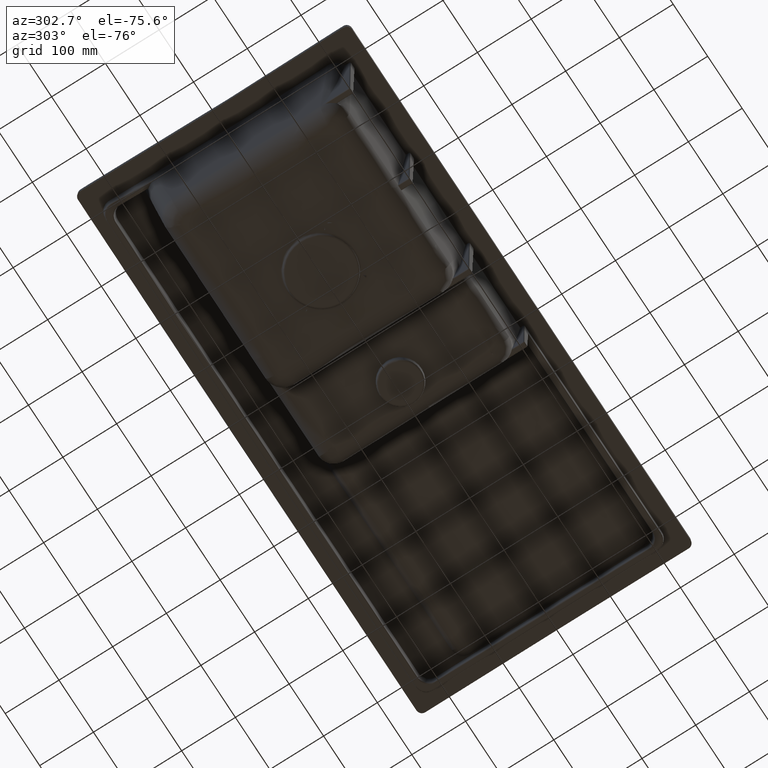
[diagram: clean part render]
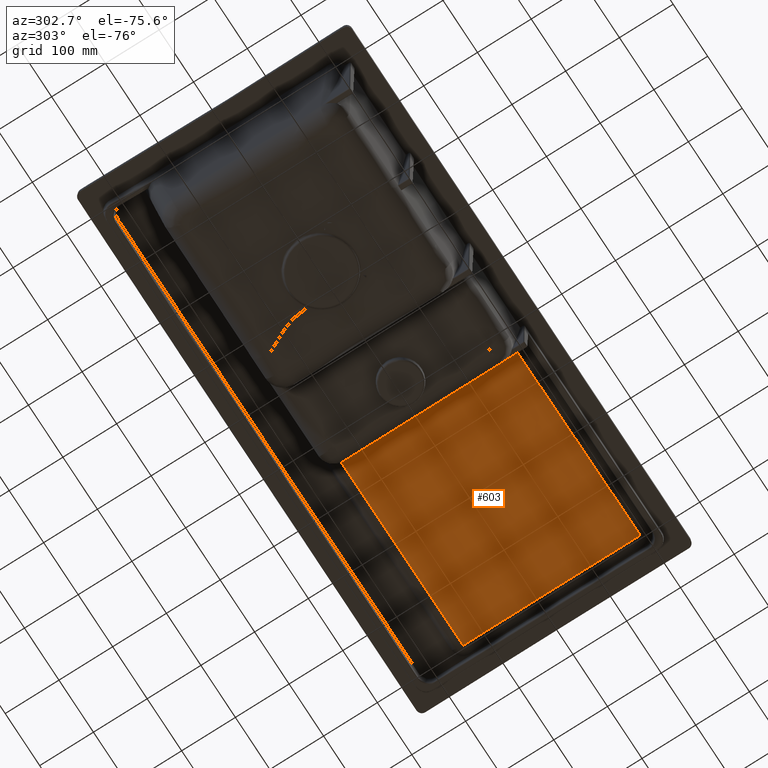
[diagram: same view with one face highlighted and labeled with its STEP entity id]
A machine part, auxiliary view. The second image highlights one B-rep face of the part: STEP entity #603.
In plain terms, the highlighted face is a freeform B-spline surface patch.
Its self-contained STEP definition (entity closure, byte-faithful):
#114=(
BOUNDED_CURVE()
B_SPLINE_CURVE(3,(#15065,#15066,#15067,#15068,#15069,#15070),
 .UNSPECIFIED.,.F.,.F.)
B_SPLINE_CURVE_WITH_KNOTS((4,2,4),(0.,0.48948603548975,1.),
 .UNSPECIFIED.)
CURVE()
GEOMETRIC_REPRESENTATION_ITEM()
RATIONAL_B_SPLINE_CURVE((1.,1.,1.,1.,1.,1.))
REPRESENTATION_ITEM('')
);
#116=(
BOUNDED_CURVE()
B_SPLINE_CURVE(3,(#15093,#15094,#15095,#15096,#15097,#15098,#15099,#15100,
#15101,#15102,#15103,#15104),.UNSPECIFIED.,.F.,.F.)
B_SPLINE_CURVE_WITH_KNOTS((4,2,2,2,2,4),(0.,0.25,0.5,0.625,0.75,1.),
 .UNSPECIFIED.)
CURVE()
GEOMETRIC_REPRESENTATION_ITEM()
RATIONAL_B_SPLINE_CURVE((1.,1.,1.,1.,1.,1.,1.,1.,1.,1.,1.,1.))
REPRESENTATION_ITEM('')
);
#118=(
BOUNDED_CURVE()
B_SPLINE_CURVE(3,(#15145,#15146,#15147,#15148,#15149,#15150,#15151,#15152,
#15153,#15154,#15155,#15156,#15157,#15158),.UNSPECIFIED.,.F.,.F.)
B_SPLINE_CURVE_WITH_KNOTS((4,2,2,2,2,2,4),(0.,0.125000255718451,0.250000511436902,
0.500001022873803,0.750001534310705,0.875001790029155,1.),.UNSPECIFIED.)
CURVE()
GEOMETRIC_REPRESENTATION_ITEM()
RATIONAL_B_SPLINE_CURVE((1.,1.,1.,1.,1.,1.,1.,1.,1.,1.,1.,1.,1.,1.))
REPRESENTATION_ITEM('')
);
#120=(
BOUNDED_CURVE()
B_SPLINE_CURVE(3,(#15205,#15206,#15207,#15208,#15209,#15210,#15211,#15212,
#15213,#15214,#15215,#15216,#15217,#15218),.UNSPECIFIED.,.F.,.F.)
B_SPLINE_CURVE_WITH_KNOTS((4,2,2,2,2,2,4),(0.,0.25,0.375,0.5,0.625,0.75,
1.),.UNSPECIFIED.)
CURVE()
GEOMETRIC_REPRESENTATION_ITEM()
RATIONAL_B_SPLINE_CURVE((1.,1.,1.,1.,1.,1.,1.,1.,1.,1.,1.,1.,1.,1.))
REPRESENTATION_ITEM('')
);
#603=ADVANCED_FACE('',(#1103),#852,.F.);
#852=B_SPLINE_SURFACE_WITH_KNOTS('',3,3,((#19778,#19779,#19780,#19781),
(#19782,#19783,#19784,#19785),(#19786,#19787,#19788,#19789),(#19790,#19791,
#19792,#19793),(#19794,#19795,#19796,#19797),(#19798,#19799,#19800,#19801),
(#19802,#19803,#19804,#19805),(#19806,#19807,#19808,#19809),(#19810,#19811,
#19812,#19813),(#19814,#19815,#19816,#19817),(#19818,#19819,#19820,#19821),
(#19822,#19823,#19824,#19825),(#19826,#19827,#19828,#19829),(#19830,#19831,
#19832,#19833),(#19834,#19835,#19836,#19837),(#19838,#19839,#19840,#19841),
(#19842,#19843,#19844,#19845),(#19846,#19847,#19848,#19849),(#19850,#19851,
#19852,#19853)),.UNSPECIFIED.,.F.,.F.,.F.,(4,3,3,3,3,3,4),(4,4),(0.,0.125,
0.25,0.5,0.75,0.875,1.),(0.,1.),.UNSPECIFIED.);
#1103=FACE_OUTER_BOUND('',#1446,.T.);
#1446=EDGE_LOOP('',(#2390,#2391,#2392,#2393,#2394,#2395,#2396,#2397));
#2390=ORIENTED_EDGE('',*,*,#4251,.F.);
#2391=ORIENTED_EDGE('',*,*,#4252,.T.);
#2392=ORIENTED_EDGE('',*,*,#4253,.T.);
#2393=ORIENTED_EDGE('',*,*,#4172,.F.);
#2394=ORIENTED_EDGE('',*,*,#4170,.F.);
#2395=ORIENTED_EDGE('',*,*,#4168,.F.);
#2396=ORIENTED_EDGE('',*,*,#4166,.F.);
#2397=ORIENTED_EDGE('',*,*,#4164,.F.);
#3537=VERTEX_POINT('',#14993);
#3538=VERTEX_POINT('',#14998);
#3539=VERTEX_POINT('',#15071);
#3540=VERTEX_POINT('',#15105);
#3541=VERTEX_POINT('',#15159);
#3542=VERTEX_POINT('',#15219);
#3585=VERTEX_POINT('',#19726);
#3586=VERTEX_POINT('',#19751);
#4164=EDGE_CURVE('',#3537,#3538,#4950,.T.);
#4166=EDGE_CURVE('',#3538,#3539,#114,.T.);
#4168=EDGE_CURVE('',#3539,#3540,#116,.T.);
#4170=EDGE_CURVE('',#3540,#3541,#118,.T.);
#4172=EDGE_CURVE('',#3541,#3542,#120,.T.);
#4251=EDGE_CURVE('',#3585,#3537,#5021,.T.);
#4252=EDGE_CURVE('',#3585,#3586,#5022,.T.);
#4253=EDGE_CURVE('',#3586,#3542,#5023,.T.);
#4950=B_SPLINE_CURVE_WITH_KNOTS('',3,(#14994,#14995,#14996,#14997),
 .UNSPECIFIED.,.F.,.F.,(4,4),(0.,1.),.UNSPECIFIED.);
#5021=B_SPLINE_CURVE_WITH_KNOTS('',3,(#19727,#19728,#19729,#19730),
 .UNSPECIFIED.,.F.,.F.,(4,4),(0.,1.),.UNSPECIFIED.);
#5022=B_SPLINE_CURVE_WITH_KNOTS('',3,(#19747,#19748,#19749,#19750),
 .UNSPECIFIED.,.F.,.F.,(4,4),(0.,1.),.UNSPECIFIED.);
#5023=B_SPLINE_CURVE_WITH_KNOTS('',3,(#19752,#19753,#19754,#19755,#19756,
#19757,#19758,#19759,#19760,#19761,#19762,#19763,#19764,#19765,#19766,#19767,
#19768,#19769,#19770,#19771,#19772,#19773,#19774,#19775,#19776,#19777),
 .UNSPECIFIED.,.F.,.F.,(4,2,2,1,1,1,1,1,2,2,2,1,1,1,2,2,4),(0.,0.25,0.251953125,
0.25390625,0.2578125,0.265624999999999,0.281249999999999,0.312499999999997,
0.374999999999994,0.499999999999988,0.507812499999988,0.515624999999988,
0.531249999999989,0.56249999999999,0.624999999999991,0.749999999999994,
1.),.UNSPECIFIED.);
#14993=CARTESIAN_POINT('',(77.4181869031489,-159.927634752266,-35.5152649349231));
#14994=CARTESIAN_POINT('',(77.4181830240055,-159.92752359103,-35.5152607852196));
#14995=CARTESIAN_POINT('',(77.4176013359946,-160.760235501934,-35.5207916569921));
#14996=CARTESIAN_POINT('',(77.3746894122288,-161.610495437765,-35.5227679617521));
#14997=CARTESIAN_POINT('',(77.2865248328866,-162.470909857633,-35.5197612868745));
#14998=CARTESIAN_POINT('',(77.284855173927,-162.494217912453,-35.5194926409784));
#15065=CARTESIAN_POINT('',(77.2818060018505,-162.516941126431,-35.5192667060835));
#15066=CARTESIAN_POINT('',(136.359018715773,-162.643701210959,-34.2044924119023));
#15067=CARTESIAN_POINT('',(195.436225649233,-162.813839948811,-32.8971069625064));
#15068=CARTESIAN_POINT('',(316.128640548483,-163.261836925423,-30.2420221926544));
#15069=CARTESIAN_POINT('',(377.743710369669,-163.575522477584,-28.8954056177436));
#15070=CARTESIAN_POINT('',(439.359425495732,-163.869189243476,-27.555088439001));
#15071=CARTESIAN_POINT('',(439.359425358588,-163.869189295494,-27.5550821467366));
#15093=CARTESIAN_POINT('',(439.359425495685,-163.869189243476,-27.555088439002));
#15094=CARTESIAN_POINT('',(439.424158722718,-163.869497756411,-27.5536803069653));
#15095=CARTESIAN_POINT('',(439.490267532907,-163.856751647523,-27.5521345524055));
#15096=CARTESIAN_POINT('',(439.610762517118,-163.807270806179,-27.5490991839756));
#15097=CARTESIAN_POINT('',(439.666721593343,-163.770023851426,-27.5475709777476));
#15098=CARTESIAN_POINT('',(439.736140095696,-163.700490188876,-27.5454787887274));
#15099=CARTESIAN_POINT('',(439.757329949175,-163.674578980707,-27.5448006798547));
#15100=CARTESIAN_POINT('',(439.79372667509,-163.619769350684,-27.5435486796185));
#15101=CARTESIAN_POINT('',(439.809115438926,-163.59078908109,-27.5429701544834));
#15102=CARTESIAN_POINT('',(439.846806747947,-163.499096463453,-27.5413772102329));
#15103=CARTESIAN_POINT('',(439.859776374037,-163.432914459161,-27.5405347422918));
#15104=CARTESIAN_POINT('',(439.859789391354,-163.36683635201,-27.5399722169177));
#15105=CARTESIAN_POINT('',(439.85978918223,-163.366836500799,-27.5399626242957));
#15145=CARTESIAN_POINT('',(439.859789391302,-163.366836620026,-27.5399722191994));
#15146=CARTESIAN_POINT('',(439.862517146477,-149.476917215563,-27.4217270088147));
#15147=CARTESIAN_POINT('',(439.882185297498,-135.68465164721,-27.1606971952594));
#15148=CARTESIAN_POINT('',(439.917102712483,-108.308282351637,-26.699188216079));
#15149=CARTESIAN_POINT('',(439.930411793919,-94.6521745117692,-26.5085068090599));
#15150=CARTESIAN_POINT('',(439.960675825695,-53.6361351743514,-26.0749330314705));
#15151=CARTESIAN_POINT('',(439.966665005204,-26.2678399524564,-25.9537378477597));
#15152=CARTESIAN_POINT('',(439.959414803934,28.4765333821908,-25.9628599417659));
#15153=CARTESIAN_POINT('',(439.946896259783,55.8455750865231,-26.0958873328956));
#15154=CARTESIAN_POINT('',(439.907265154489,96.8810834684168,-26.5185187456178));
#15155=CARTESIAN_POINT('',(439.890130342256,110.552791451668,-26.6986587998791));
#15156=CARTESIAN_POINT('',(439.851544082628,137.912605226825,-27.1371816334591));
#15157=CARTESIAN_POINT('',(439.827042381935,151.580387587358,-27.4165053268274));
#15158=CARTESIAN_POINT('',(439.821043845529,165.409069601034,-27.63245829284));
#15159=CARTESIAN_POINT('',(439.821044636479,165.40941133806,-27.6325102889823));
#15205=CARTESIAN_POINT('',(439.821043551024,165.409748570722,-27.6324688957872));
#15206=CARTESIAN_POINT('',(439.821014869425,165.475822256469,-27.6335007130217));
#15207=CARTESIAN_POINT('',(439.807849326444,165.54165205427,-27.6347912163774));
#15208=CARTESIAN_POINT('',(439.770508834095,165.632050152303,-27.6369486506101));
#15209=CARTESIAN_POINT('',(439.75491517869,165.661323795266,-27.6377173544103));
#15210=CARTESIAN_POINT('',(439.718512422393,165.715842926781,-27.6392964810307));
#15211=CARTESIAN_POINT('',(439.697868880062,165.740990252102,-27.6401020587501));
#15212=CARTESIAN_POINT('',(439.651757113753,165.787111696001,-27.6417451105385));
#15213=CARTESIAN_POINT('',(439.626057594595,165.808165582301,-27.6425884696896));
#15214=CARTESIAN_POINT('',(439.571929572398,165.844224821352,-27.6442361240306));
#15215=CARTESIAN_POINT('',(439.543295322041,165.859495775284,-27.6450486792889));
#15216=CARTESIAN_POINT('',(439.452611610723,165.896908996139,-27.6474523932764));
#15217=CARTESIAN_POINT('',(439.387856003045,165.909650679437,-27.6489524129773));
#15218=CARTESIAN_POINT('',(439.322572401132,165.909639422621,-27.6502660602728));
#15219=CARTESIAN_POINT('',(439.322572860305,165.909638784267,-27.6503075819558));
#19726=CARTESIAN_POINT('',(77.4196172667364,163.022768717796,-35.5016369735712));
#19727=CARTESIAN_POINT('',(77.419616296209,163.022790453275,-35.5016327856384));
#19728=CARTESIAN_POINT('',(77.42380119451,81.6553834132323,-35.4618414660613));
#19729=CARTESIAN_POINT('',(77.4233225041036,-25.9947941008395,-35.4663930038936));
#19730=CARTESIAN_POINT('',(77.4181802249897,-159.92774208894,-35.5152873991354));
#19747=CARTESIAN_POINT('',(77.4196170375252,163.02274721425,-35.5016475141199));
#19748=CARTESIAN_POINT('',(77.4195392255159,163.881200410496,-35.5020760523653));
#19749=CARTESIAN_POINT('',(77.3773598705536,164.7291624732,-35.5034882479537));
#19750=CARTESIAN_POINT('',(77.2930804700667,165.56674356318,-35.5058702365195));
#19751=CARTESIAN_POINT('',(77.2903247109872,165.566304856059,-35.5060660744571));
#19752=CARTESIAN_POINT('',(77.2930804696849,165.566743562653,-35.5058702365281));
#19753=CARTESIAN_POINT('',(100.505386739687,165.538178001771,-34.965629223061));
#19754=CARTESIAN_POINT('',(131.174112033153,165.627354511917,-34.2569897546121));
#19755=CARTESIAN_POINT('',(169.596846646802,165.683152614339,-33.3919155476537));
#19756=CARTESIAN_POINT('',(169.78111241749,165.683419546691,-33.3877676349145));
#19757=CARTESIAN_POINT('',(170.263068920635,165.684116814821,-33.3769196170719));
#19758=CARTESIAN_POINT('',(170.985843751954,165.685160513629,-33.3606534863997));
#19759=CARTESIAN_POINT('',(172.671198895932,165.687580476722,-33.322740445508));
#19760=CARTESIAN_POINT('',(176.037431345068,165.692359783777,-33.2470793496204));
#19761=CARTESIAN_POINT('',(182.751984976468,165.701681670344,-33.0964165238001));
#19762=CARTESIAN_POINT('',(196.109447897386,165.719424687137,-32.7977234536253));
#19763=CARTESIAN_POINT('',(207.435885509242,165.733247642599,-32.5461961249224));
#19764=CARTESIAN_POINT('',(229.925013216665,165.759476757621,-32.0490772167296));
#19765=CARTESIAN_POINT('',(244.699434710726,165.775071237965,-31.7255826870439));
#19766=CARTESIAN_POINT('',(260.165306757249,165.790882335175,-31.3900688860181));
#19767=CARTESIAN_POINT('',(261.15333256704,165.79188960312,-31.368647477065));
#19768=CARTESIAN_POINT('',(263.050593244479,165.793817689183,-31.3275392030277));
#19769=CARTESIAN_POINT('',(265.895961956374,165.79670043481,-31.2659260234099));
#19770=CARTESIAN_POINT('',(272.531499642334,165.803358293284,-31.1225063456344));
#19771=CARTESIAN_POINT('',(285.787952394535,165.816377299076,-30.8370425347066));
#19772=CARTESIAN_POINT('',(297.125563352895,165.826951767038,-30.5947090024173));
#19773=CARTESIAN_POINT('',(319.767382036904,165.847134829115,-30.1131362391847));
#19774=CARTESIAN_POINT('',(334.817389386113,165.859295310032,-29.7962204357882));
#19775=CARTESIAN_POINT('',(379.833933899805,165.890641119329,-28.8573240620946));
#19776=CARTESIAN_POINT('',(409.666977165039,165.904548971211,-28.2473304754127));
#19777=CARTESIAN_POINT('',(439.322573287039,165.909638145861,-27.6503491072522));
#19778=CARTESIAN_POINT('',(442.078786056848,-165.795108909584,-27.5108489855014));
#19779=CARTESIAN_POINT('',(319.752137686997,-169.059760114614,-30.1977114963075));
#19780=CARTESIAN_POINT('',(197.42533863825,-172.318854709825,-32.8843849636619));
#19781=CARTESIAN_POINT('',(75.0984406330044,-175.574266919619,-35.5709740827544));
#19782=CARTESIAN_POINT('',(442.078476366885,-151.783500308975,-27.4085884726394));
#19783=CARTESIAN_POINT('',(319.753289033658,-154.413916381355,-30.1289043233786));
#19784=CARTESIAN_POINT('',(197.427824970829,-157.033159063735,-32.8486449716754));
#19785=CARTESIAN_POINT('',(75.102180136603,-159.64499293979,-35.5681281433546));
#19786=CARTESIAN_POINT('',(442.089954387648,-137.829811358164,-27.1493669166669));
#19787=CARTESIAN_POINT('',(319.764171831699,-139.804489369492,-29.9541703760588));
#19788=CARTESIAN_POINT('',(197.438154804158,-141.765379258105,-32.7577950421778));
#19789=CARTESIAN_POINT('',(75.1119877552022,-143.717102383461,-35.5608902896625));
#19790=CARTESIAN_POINT('',(442.101139695548,-123.940077969466,-26.9113592055413));
#19791=CARTESIAN_POINT('',(319.774578935096,-125.235182432842,-29.7931651204556));
#19792=CARTESIAN_POINT('',(197.447865354245,-126.517279125204,-32.6739177887709));
#19793=CARTESIAN_POINT('',(75.121055550208,-127.790731206744,-35.5541971691632));
#19794=CARTESIAN_POINT('',(442.112325003449,-110.050344580768,-26.6733514944157));
#19795=CARTESIAN_POINT('',(319.784986038493,-110.665875496192,-29.6321598648525));
#19796=CARTESIAN_POINT('',(197.457575904333,-111.269178992302,-32.590040535364));
#19797=CARTESIAN_POINT('',(75.1301233452138,-111.864360030028,-35.5475040486639));
#19798=CARTESIAN_POINT('',(442.121613664868,-96.1893093329368,-26.4735393897065));
#19799=CARTESIAN_POINT('',(319.793652184768,-96.1145470549018,-29.4967989303431));
#19800=CARTESIAN_POINT('',(197.465696738992,-96.0298905279459,-32.5194651348081));
#19801=CARTESIAN_POINT('',(75.1377484544475,-95.9386691286117,-35.5418643079402));
#19802=CARTESIAN_POINT('',(442.128034434047,-82.3148315064953,-26.323125579115));
#19803=CARTESIAN_POINT('',(319.799805527214,-81.5547548804323,-29.3949705474409));
#19804=CARTESIAN_POINT('',(197.471621054769,-80.7864381937665,-32.4663912938716));
#19805=CARTESIAN_POINT('',(75.1434683161402,-80.0126566980727,-35.5376209094578));
#19806=CARTESIAN_POINT('',(442.140875972405,-54.5658758536125,-26.0222979579319));
#19807=CARTESIAN_POINT('',(319.812112212106,-52.4351705314934,-29.1913137816366));
#19808=CARTESIAN_POINT('',(197.483469686322,-50.2995335254075,-32.3602436119985));
#19809=CARTESIAN_POINT('',(75.1549080395257,-48.1606318369947,-35.529134112493));
#19810=CARTESIAN_POINT('',(442.144374282777,-26.8013104503611,-25.8966911175033));
#19811=CARTESIAN_POINT('',(319.816043817499,-23.3056962458843,-29.1063215256754));
#19812=CARTESIAN_POINT('',(197.487807784874,-19.8077387262031,-32.3159530650546));
#19813=CARTESIAN_POINT('',(75.1596342738422,-16.308229255144,-35.5255845874271));
#19814=CARTESIAN_POINT('',(442.142177180062,0.965381524381151,-25.9011399732294));
#19815=CARTESIAN_POINT('',(319.814595318571,5.82510230318997,-29.1093299409297));
#19816=CARTESIAN_POINT('',(197.487008674349,10.6847026483421,-32.3175199436779));
#19817=CARTESIAN_POINT('',(75.1594188630802,15.5442232316146,-35.5257099888332));
#19818=CARTESIAN_POINT('',(442.139980077348,28.7320734991234,-25.9055888289554));
#19819=CARTESIAN_POINT('',(319.813146819642,34.9559008522642,-29.1123383561841));
#19820=CARTESIAN_POINT('',(197.486209563823,41.1771440228873,-32.3190868223012));
#19821=CARTESIAN_POINT('',(75.1592034523183,47.3966757183731,-35.5258353902392));
#19822=CARTESIAN_POINT('',(442.131547967905,56.497449703466,-26.0430332012756));
#19823=CARTESIAN_POINT('',(319.805927677843,64.0858726095237,-29.2053455150516));
#19824=CARTESIAN_POINT('',(197.480020333524,71.6691787727438,-32.3675545578612));
#19825=CARTESIAN_POINT('',(75.1539236514624,79.2490968070665,-35.5297187677825));
#19826=CARTESIAN_POINT('',(442.114891095757,84.2545380789251,-26.3351649744246));
#19827=CARTESIAN_POINT('',(319.791359228721,93.2105645693955,-29.4030764208358));
#19828=CARTESIAN_POINT('',(197.467235714614,102.15859206815,-32.4706020510875));
#19829=CARTESIAN_POINT('',(75.1427220156703,111.101315361885,-35.5379572565449));
#19830=CARTESIAN_POINT('',(442.106562659683,98.1330822666547,-26.4812308609991));
#19831=CARTESIAN_POINT('',(319.784075004161,107.772910549331,-29.501941873728));
#19832=CARTESIAN_POINT('',(197.460843405159,117.403298715853,-32.5221257977006));
#19833=CARTESIAN_POINT('',(75.1371211977743,127.027424639295,-35.5420765009261));
#19834=CARTESIAN_POINT('',(442.095871738235,112.007207124623,-26.6684594138036));
#19835=CARTESIAN_POINT('',(319.774727116277,122.332460372436,-29.6286922430814));
#19836=CARTESIAN_POINT('',(197.452642924625,132.646624382462,-32.5881873083354));
#19837=CARTESIAN_POINT('',(75.1299390346237,142.953427254779,-35.5473553050244));
#19838=CARTESIAN_POINT('',(442.083718724972,125.886521757783,-26.8955556172409));
#19839=CARTESIAN_POINT('',(319.76389875298,136.895233868177,-29.7823887404691));
#19840=CARTESIAN_POINT('',(197.442947070984,147.891519851714,-32.6682773377145));
#19841=CARTESIAN_POINT('',(75.1212484913037,158.879551014926,-35.5537466408671));
#19842=CARTESIAN_POINT('',(442.071565711709,139.765836390943,-27.1226518206781));
#19843=CARTESIAN_POINT('',(319.753070389683,151.458007363917,-29.9360852378569));
#19844=CARTESIAN_POINT('',(197.433251217343,163.136415320966,-32.7483673670935));
#19845=CARTESIAN_POINT('',(75.1125579479838,174.805674775073,-35.5601379767097));
#19846=CARTESIAN_POINT('',(442.056715658439,153.649751474606,-27.4121734858422));
#19847=CARTESIAN_POINT('',(319.739669574449,166.02361846243,-30.13191028261));
#19848=CARTESIAN_POINT('',(197.421091731231,178.38268187886,-32.8503721869189));
#19849=CARTESIAN_POINT('',(75.1015017563695,190.731904298279,-35.5682677069263));
#19850=CARTESIAN_POINT('',(442.054481062568,167.618967829941,-27.6213618461433));
#19851=CARTESIAN_POINT('',(319.735321337582,180.642812706341,-30.2729201803975));
#19852=CARTESIAN_POINT('',(197.414939491282,193.655270003242,-32.9236872071733));
#19853=CARTESIAN_POINT('',(75.0937499716554,206.660166155987,-35.5741038674668));